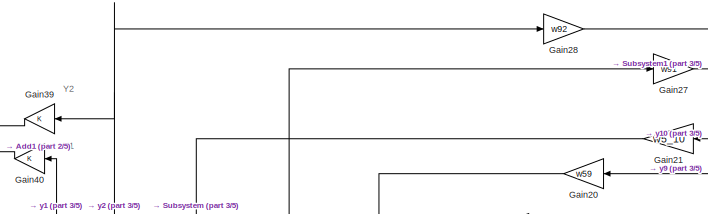
[diagram: root canvas - part 1/5, top center region]
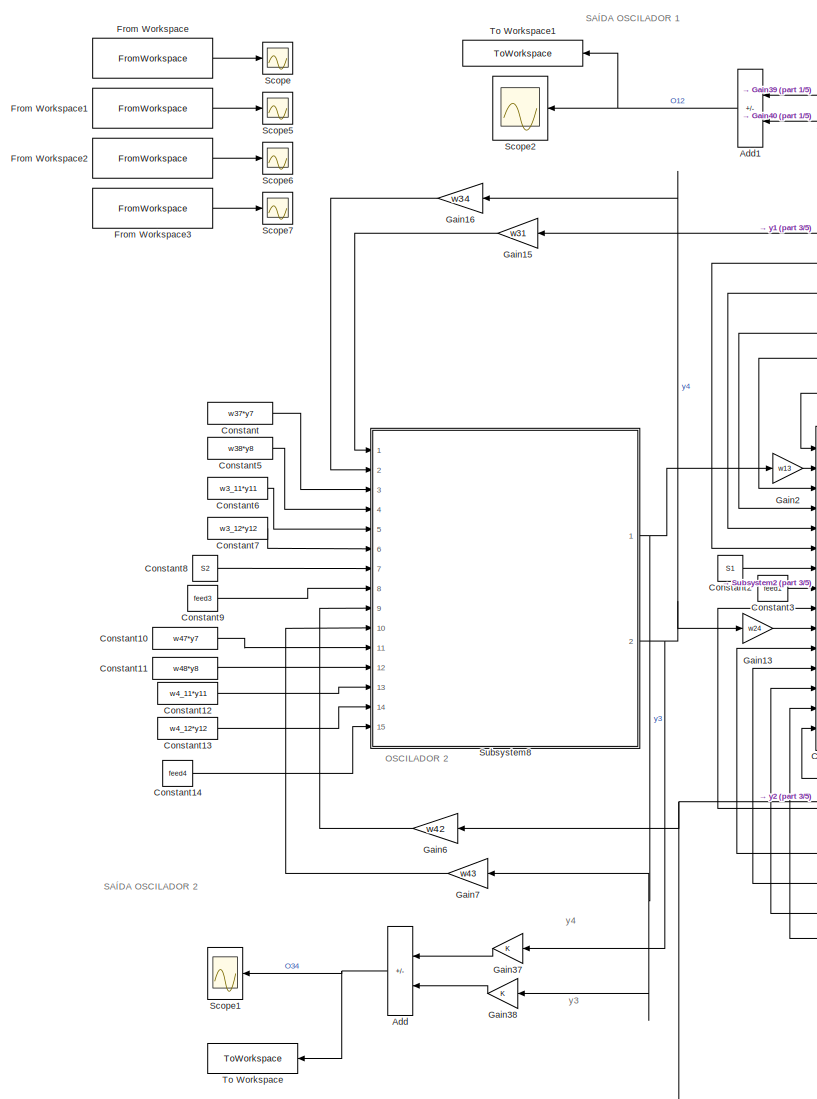
[diagram: root canvas - part 2/5, left side, full height]
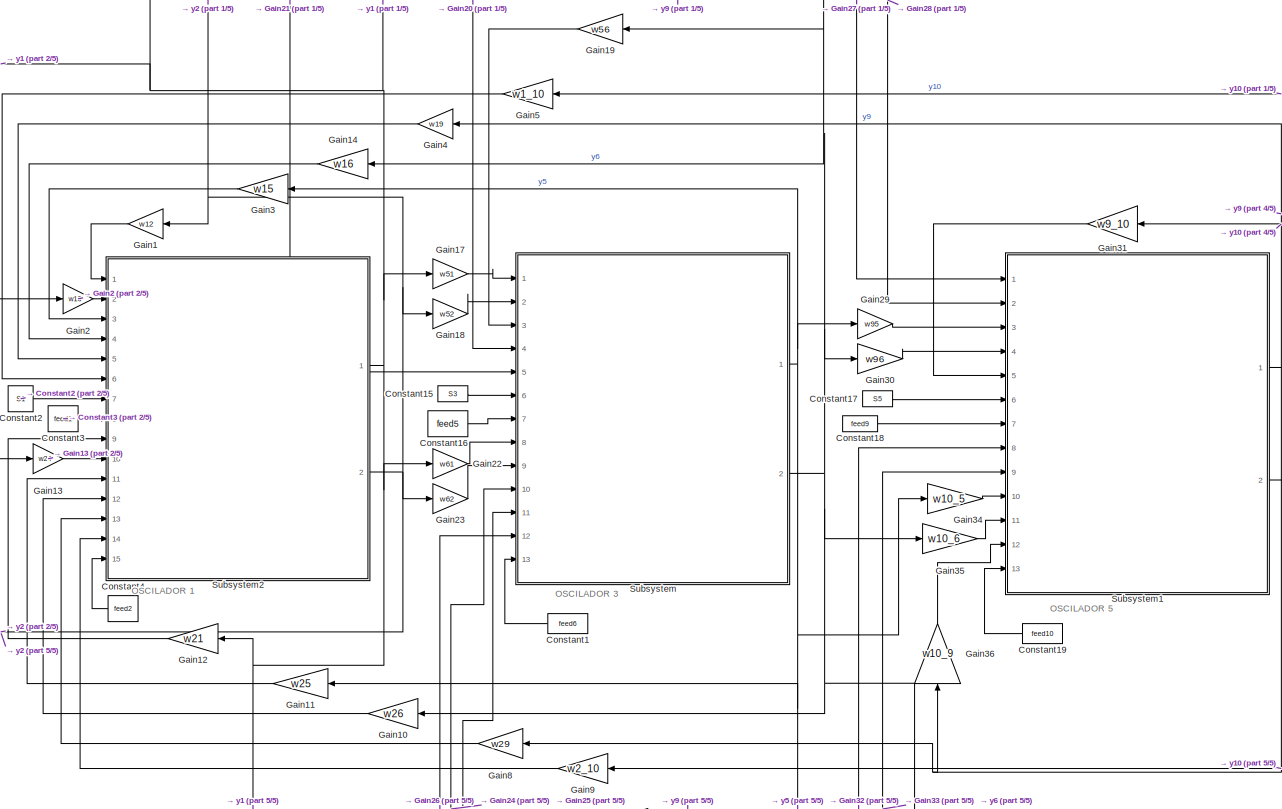
[diagram: root canvas - part 3/5, central region]
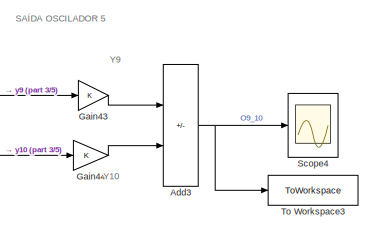
[diagram: root canvas - part 4/5, middle right region]
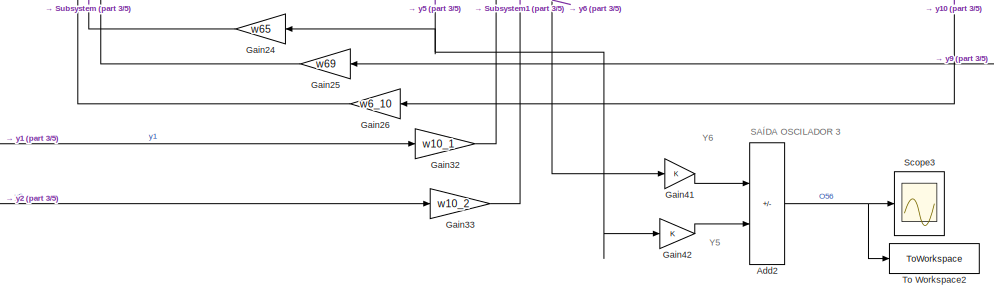
[diagram: root canvas - part 5/5, bottom center region]
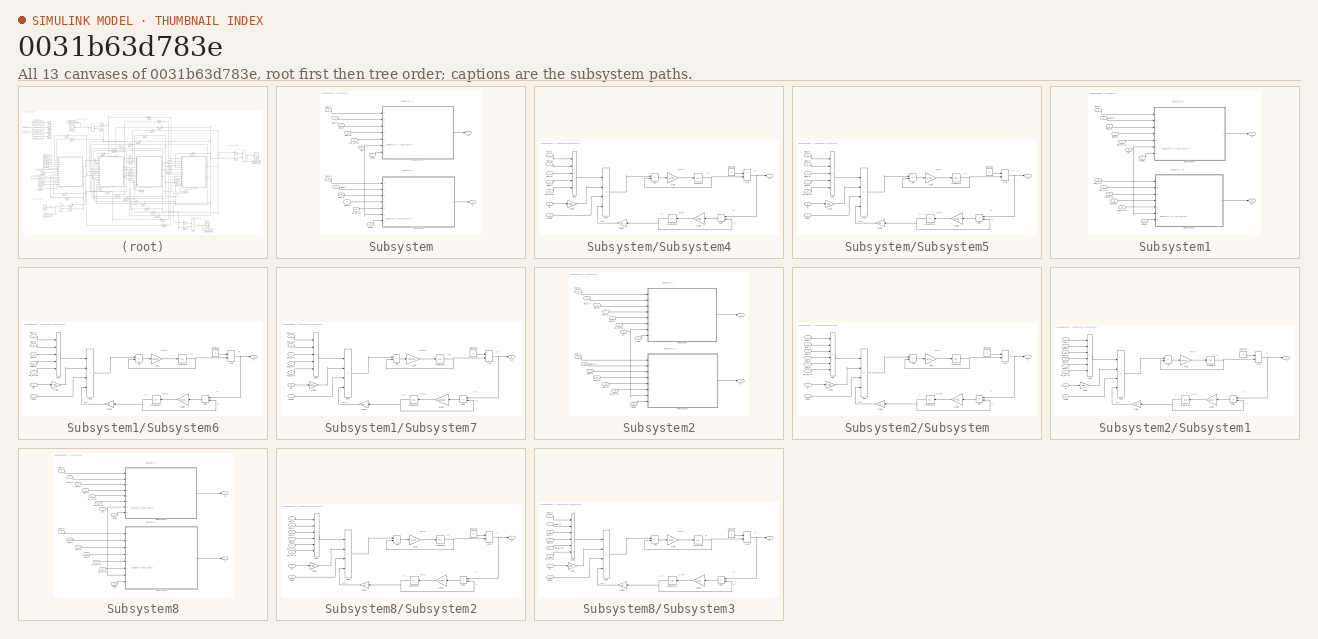
[diagram: thumbnail index - all 13 canvases of the model, root first then tree order]
MODEL slx_0031b63d783e
KIND model
CONFIG AbsTol = auto
CONFIG EnableMultiTasking = off
CONFIG FixedStep = auto
CONFIG MaxStep = auto
CONFIG MinStep = auto
CONFIG RelTol = 1e-4
CONFIG SampleTimeConstraint = Unconstrained
CONFIG Solver = VariableStepAuto
CONFIG SolverName = VariableStepAuto
CONFIG StartTime = 0.0
CONFIG StopTime = 1.14
BLOCK [Sum] Add
  IconShape = rectangular
  Inputs = +-
  NameLocation = top
  Ports = [2, 1]
BLOCK [Sum] Add1
  IconShape = rectangular
  Inputs = +-
  NameLocation = top
  Ports = [2, 1]
BLOCK [Sum] Add2
  IconShape = rectangular
  Inputs = +-
  Ports = [2, 1]
BLOCK [Sum] Add3
  IconShape = rectangular
  Inputs = -+
  Ports = [2, 1]
BLOCK [Constant] Constant
  Value = w37*y7
BLOCK [Constant] Constant1
  NameLocation = top
  Value = feed6
BLOCK [Constant] Constant10
  Value = w47*y7
BLOCK [Constant] Constant11
  Value = w48*y8
BLOCK [Constant] Constant12
  Value = w4_11*y11
BLOCK [Constant] Constant13
  Value = w4_12*y12
BLOCK [Constant] Constant14
  Value = feed4
BLOCK [Constant] Constant15
  Value = S3
BLOCK [Constant] Constant16
  Value = feed5
BLOCK [Constant] Constant17
  Value = S5
BLOCK [Constant] Constant18
  Value = feed9
BLOCK [Constant] Constant19
  NameLocation = top
  Value = feed10
BLOCK [Constant] Constant2
  Value = S1
BLOCK [Constant] Constant3
  Value = feed1
BLOCK [Constant] Constant4
  NameLocation = top
  Value = feed2
BLOCK [Constant] Constant5
  Value = w38*y8
BLOCK [Constant] Constant6
  Value = w3_11*y11
BLOCK [Constant] Constant7
  Value = w3_12*y12
BLOCK [Constant] Constant8
  Value = S2
BLOCK [Constant] Constant9
  Value = feed3
BLOCK [FromWorkspace] From Workspace
  OutputAfterFinalValue = Holding final value
  VariableName = thetaQD
BLOCK [FromWorkspace] From Workspace1
  OutputAfterFinalValue = Holding final value
  VariableName = thetaJD
BLOCK [FromWorkspace] From Workspace2
  OutputAfterFinalValue = Holding final value
  VariableName = thetaTD
BLOCK [FromWorkspace] From Workspace3
  OutputAfterFinalValue = Holding final value
  VariableName = thetaQE
BLOCK [Gain] Gain1
  Gain = w12
  NameLocation = top
BLOCK [Gain] Gain10
  Gain = w26
  NameLocation = top
BLOCK [Gain] Gain11
  Gain = w25
  NameLocation = top
BLOCK [Gain] Gain12
  Gain = w21
  NameLocation = top
BLOCK [Gain] Gain13
  Gain = w24
BLOCK [Gain] Gain14
  Gain = w16
  NameLocation = top
BLOCK [Gain] Gain15
  Gain = w31
  NameLocation = top
BLOCK [Gain] Gain16
  Gain = w34
  NameLocation = top
BLOCK [Gain] Gain17
  Gain = w51
BLOCK [Gain] Gain18
  Gain = w52
BLOCK [Gain] Gain19
  Gain = w56
  NameLocation = top
BLOCK [Gain] Gain2
  Gain = w13
BLOCK [Gain] Gain20
  Gain = w59
  NameLocation = top
BLOCK [Gain] Gain21
  Gain = w5_10
  NameLocation = top
BLOCK [Gain] Gain22
  Gain = w61
BLOCK [Gain] Gain23
  Gain = w62
BLOCK [Gain] Gain24
  Gain = w65
  NameLocation = top
BLOCK [Gain] Gain25
  Gain = w69
  NameLocation = top
BLOCK [Gain] Gain26
  Gain = w6_10
  NameLocation = top
BLOCK [Gain] Gain27
  Gain = w91
BLOCK [Gain] Gain28
  Gain = w92
BLOCK [Gain] Gain29
  Gain = w95
BLOCK [Gain] Gain3
  Gain = w15
  NameLocation = top
BLOCK [Gain] Gain30
  Gain = w96
BLOCK [Gain] Gain31
  Gain = w9_10
  NameLocation = top
BLOCK [Gain] Gain32
  Gain = w10_1
BLOCK [Gain] Gain33
  Gain = w10_2
BLOCK [Gain] Gain34
  Gain = w10_5
BLOCK [Gain] Gain35
  Gain = w10_6
BLOCK [Gain] Gain36
  Gain = w10_9
  NameLocation = right
BLOCK [Gain] Gain37
  NameLocation = top
BLOCK [Gain] Gain38
  NameLocation = top
BLOCK [Gain] Gain39
  NameLocation = top
BLOCK [Gain] Gain4
  Gain = w19
  NameLocation = top
BLOCK [Gain] Gain40
  NameLocation = top
BLOCK [Gain] Gain41
BLOCK [Gain] Gain42
BLOCK [Gain] Gain43
BLOCK [Gain] Gain44
BLOCK [Gain] Gain5
  Gain = w1_10
  NameLocation = top
BLOCK [Gain] Gain6
  Gain = w42
  NameLocation = top
BLOCK [Gain] Gain7
  Gain = w43
  NameLocation = top
BLOCK [Gain] Gain8
  Gain = w29
  NameLocation = top
BLOCK [Gain] Gain9
  Gain = w2_10
  NameLocation = top
BLOCK [Scope] Scope
  Floating = off
  NumInputPorts = 1
  Ports = [1]
  ScopeSpecificationString = Simulink.scopes.TimeScopeBlockCfg('CurrentConfiguration', extmgr.ConfigurationSet(extmgr.Configuration('Core','General UI',true),extmgr.Configuration('Core','Source UI',true),extmgr.Configuration('Sources','WiredSimulink',true,'DataLoggingVariableName','ScopeData1'),extmgr.Configuration('Visuals','Time Domain',true,'SerializedDisplays',{struct('MinYLimReal','-14.72972','MaxYLimReal','33.09974','YL...<+1379ch>
BLOCK [Scope] Scope1
  Floating = off
  NameLocation = top
  NumInputPorts = 1
  Ports = [1]
  ScopeSpecificationString = Simulink.scopes.TimeScopeBlockCfg('CurrentConfiguration', extmgr.ConfigurationSet(extmgr.Configuration('Core','General UI',true),extmgr.Configuration('Core','Source UI',true),extmgr.Configuration('Sources','WiredSimulink',true,'DataLoggingVariableName','ScopeData2'),extmgr.Configuration('Visuals','Time Domain',true,'SerializedDisplays',{struct('MinYLimReal','-165.14927','MaxYLimReal','49.83977','Y...<+1439ch>
BLOCK [Scope] Scope2
  Floating = off
  NameLocation = top
  NumInputPorts = 1
  Ports = [1]
  ScopeSpecificationString = Simulink.scopes.TimeScopeBlockCfg('CurrentConfiguration', extmgr.ConfigurationSet(extmgr.Configuration('Core','General UI',true),extmgr.Configuration('Core','Source UI',true),extmgr.Configuration('Sources','WiredSimulink',true,'DataLoggingVariableName','ScopeData3'),extmgr.Configuration('Visuals','Time Domain',true,'SerializedDisplays',{struct('MinYLimReal','-50.16275','MaxYLimReal','53.42791','YL...<+1450ch>
BLOCK [Scope] Scope3
  Floating = off
  NumInputPorts = 1
  Ports = [1]
  ScopeSpecificationString = Simulink.scopes.TimeScopeBlockCfg('CurrentConfiguration', extmgr.ConfigurationSet(extmgr.Configuration('Core','General UI',true),extmgr.Configuration('Core','Source UI',true),extmgr.Configuration('Sources','WiredSimulink',true,'DataLoggingVariableName','ScopeData4'),extmgr.Configuration('Visuals','Time Domain',true,'SerializedDisplays',{struct('MinYLimReal','-5.19795','MaxYLimReal','46.78152','YLa...<+1450ch>
BLOCK [Scope] Scope4
  Floating = off
  NumInputPorts = 1
  Ports = [1]
  ScopeSpecificationString = Simulink.scopes.TimeScopeBlockCfg('CurrentConfiguration', extmgr.ConfigurationSet(extmgr.Configuration('Core','General UI',true),extmgr.Configuration('Core','Source UI',true),extmgr.Configuration('Sources','WiredSimulink',true,'DataLoggingVariableName','ScopeData5'),extmgr.Configuration('Visuals','Time Domain',true,'SerializedDisplays',{struct('MinYLimReal','-1.74242','MaxYLimReal','15.68176','YLa...<+1452ch>
BLOCK [Scope] Scope5
  Floating = off
  NumInputPorts = 1
  Ports = [1]
  ScopeSpecificationString = Simulink.scopes.TimeScopeBlockCfg('CurrentConfiguration', extmgr.ConfigurationSet(extmgr.Configuration('Core','General UI',true),extmgr.Configuration('Core','Source UI',true),extmgr.Configuration('Sources','WiredSimulink',true,'DataLoggingVariableName','ScopeData6'),extmgr.Configuration('Visuals','Time Domain',true,'SerializedDisplays',{struct('MinYLimReal','6.32765','MaxYLimReal','67.47013','YLab...<+1376ch>
BLOCK [Scope] Scope6
  Floating = off
  NumInputPorts = 1
  Ports = [1]
  ScopeSpecificationString = Simulink.scopes.TimeScopeBlockCfg('CurrentConfiguration', extmgr.ConfigurationSet(extmgr.Configuration('Core','General UI',true),extmgr.Configuration('Core','Source UI',true),extmgr.Configuration('Sources','WiredSimulink',true,'DataLoggingVariableName','ScopeData7'),extmgr.Configuration('Visuals','Time Domain',true,'SerializedDisplays',{struct('MinYLimReal','-8.9193','MaxYLimReal','22.63934','YLab...<+1376ch>
BLOCK [Scope] Scope7
  Floating = off
  NumInputPorts = 1
  Ports = [1]
  ScopeSpecificationString = Simulink.scopes.TimeScopeBlockCfg('CurrentConfiguration', extmgr.ConfigurationSet(extmgr.Configuration('Core','General UI',true),extmgr.Configuration('Core','Source UI',true),extmgr.Configuration('Sources','WiredSimulink',true),extmgr.Configuration('Visuals','Time Domain',true,'SerializedDisplays',{struct('MinYLimReal','-14.77229','MaxYLimReal','33.10426','YLabelReal','','MinYLimMag','0.00000','Ma...<+1341ch>
BLOCK [SubSystem] Subsystem
  Ports = [13, 2]
  RequestExecContextInheritance = off
BLOCK [Inport] Subsystem/S3
  Port = 6
BLOCK [SubSystem] Subsystem/Subsystem4
  Ports = [7, 1]
  RequestExecContextInheritance = off
BLOCK [Sum] Subsystem/Subsystem4/Add
  IconShape = rectangular
  Inputs = +-
  Ports = [2, 1]
BLOCK [Sum] Subsystem/Subsystem4/Add1
  IconShape = rectangular
  Inputs = +++++
  Ports = [5, 1]
BLOCK [Sum] Subsystem/Subsystem4/Add2
  IconShape = rectangular
  Inputs = +++-
  Ports = [4, 1]
BLOCK [Sum] Subsystem/Subsystem4/Add3
  IconShape = rectangular
  Inputs = +-
  NameLocation = top
  Ports = [2, 1]
BLOCK [Constant] Subsystem/Subsystem4/Constant
  Value = 0
BLOCK [Gain] Subsystem/Subsystem4/Gain
  Gain = 1/tr5
BLOCK [Gain] Subsystem/Subsystem4/Gain1
  Gain = ws5
BLOCK [Gain] Subsystem/Subsystem4/Gain2
  Gain = 1/ta5
  NameLocation = top
BLOCK [Gain] Subsystem/Subsystem4/Gain3
  Gain = b3
  NameLocation = top
BLOCK [Integrator] Subsystem/Subsystem4/Integrator
  Ports = [1, 1]
BLOCK [Integrator] Subsystem/Subsystem4/Integrator1
  NameLocation = top
  Ports = [1, 1]
BLOCK [MinMax] Subsystem/Subsystem4/Max
  Function = max
  Inputs = 2
  Ports = [2, 1]
BLOCK [Inport] Subsystem/Subsystem4/S3
  Port = 6
BLOCK [Inport] Subsystem/Subsystem4/feed5
  Port = 7
BLOCK [Inport] Subsystem/Subsystem4/w51*y1
BLOCK [Inport] Subsystem/Subsystem4/w52*y2
  Port = 2
BLOCK [Inport] Subsystem/Subsystem4/w56*y6
  Port = 3
BLOCK [Inport] Subsystem/Subsystem4/w59*y9
  Port = 4
BLOCK [Inport] Subsystem/Subsystem4/w5_10*y10
  Port = 5
BLOCK [Outport] Subsystem/Subsystem4/y5
  VectorParamsAs1DForOutWhenUnconnected = off
BLOCK [SubSystem] Subsystem/Subsystem5
  Ports = [7, 1]
  RequestExecContextInheritance = off
BLOCK [Sum] Subsystem/Subsystem5/Add
  IconShape = rectangular
  Inputs = +-
  Ports = [2, 1]
BLOCK [Sum] Subsystem/Subsystem5/Add1
  IconShape = rectangular
  Inputs = +++++
  Ports = [5, 1]
BLOCK [Sum] Subsystem/Subsystem5/Add2
  IconShape = rectangular
  Inputs = +++-
  Ports = [4, 1]
BLOCK [Sum] Subsystem/Subsystem5/Add3
  IconShape = rectangular
  Inputs = +-
  NameLocation = top
  Ports = [2, 1]
BLOCK [Constant] Subsystem/Subsystem5/Constant
  Value = 0
BLOCK [Gain] Subsystem/Subsystem5/Gain
  Gain = 1/tr6
BLOCK [Gain] Subsystem/Subsystem5/Gain1
  Gain = ws6
BLOCK [Gain] Subsystem/Subsystem5/Gain2
  Gain = 1/ta6
  NameLocation = top
BLOCK [Gain] Subsystem/Subsystem5/Gain3
  Gain = b3
  NameLocation = top
BLOCK [Integrator] Subsystem/Subsystem5/Integrator
  Ports = [1, 1]
BLOCK [Integrator] Subsystem/Subsystem5/Integrator1
  NameLocation = top
  Ports = [1, 1]
BLOCK [MinMax] Subsystem/Subsystem5/Max
  Function = max
  Inputs = 2
  Ports = [2, 1]
BLOCK [Inport] Subsystem/Subsystem5/S3
  Port = 6
BLOCK [Inport] Subsystem/Subsystem5/feed6
  Port = 7
BLOCK [Inport] Subsystem/Subsystem5/w61*y1
BLOCK [Inport] Subsystem/Subsystem5/w62*y2
  Port = 2
BLOCK [Inport] Subsystem/Subsystem5/w65*y5
  Port = 3
BLOCK [Inport] Subsystem/Subsystem5/w69*y9
  Port = 4
BLOCK [Inport] Subsystem/Subsystem5/w6_10*y10
  Port = 5
BLOCK [Outport] Subsystem/Subsystem5/y6
  VectorParamsAs1DForOutWhenUnconnected = off
BLOCK [Inport] Subsystem/feed5
  Port = 7
BLOCK [Inport] Subsystem/feed6
  Port = 13
BLOCK [Inport] Subsystem/w51*y1
BLOCK [Inport] Subsystem/w52*y2
  Port = 2
BLOCK [Inport] Subsystem/w56*y6
  Port = 3
BLOCK [Inport] Subsystem/w59*y9
  Port = 4
BLOCK [Inport] Subsystem/w5_10*y10
  Port = 5
BLOCK [Inport] Subsystem/w61*y1
  Port = 8
BLOCK [Inport] Subsystem/w62*y2
  Port = 9
BLOCK [Inport] Subsystem/w65*y5
  Port = 10
BLOCK [Inport] Subsystem/w69*y9
  Port = 11
BLOCK [Inport] Subsystem/w6_10*y10
  Port = 12
BLOCK [Outport] Subsystem/y5
  VectorParamsAs1DForOutWhenUnconnected = off
BLOCK [Outport] Subsystem/y6
  Port = 2
  VectorParamsAs1DForOutWhenUnconnected = off
BLOCK [SubSystem] Subsystem1
  Ports = [13, 2]
  RequestExecContextInheritance = off
BLOCK [Inport] Subsystem1/S5
  Port = 6
BLOCK [SubSystem] Subsystem1/Subsystem6
  Ports = [7, 1]
  RequestExecContextInheritance = off
BLOCK [Sum] Subsystem1/Subsystem6/Add
  IconShape = rectangular
  Inputs = +-
  Ports = [2, 1]
BLOCK [Sum] Subsystem1/Subsystem6/Add1
  IconShape = rectangular
  Inputs = +++++
  Ports = [5, 1]
BLOCK [Sum] Subsystem1/Subsystem6/Add2
  IconShape = rectangular
  Inputs = +++-
  Ports = [4, 1]
BLOCK [Sum] Subsystem1/Subsystem6/Add3
  IconShape = rectangular
  Inputs = +-
  NameLocation = top
  Ports = [2, 1]
BLOCK [Constant] Subsystem1/Subsystem6/Constant
  Value = 0
BLOCK [Gain] Subsystem1/Subsystem6/Gain
  Gain = 1/tr9
BLOCK [Gain] Subsystem1/Subsystem6/Gain1
  Gain = ws9
BLOCK [Gain] Subsystem1/Subsystem6/Gain2
  Gain = 1/ta9
  NameLocation = top
BLOCK [Gain] Subsystem1/Subsystem6/Gain3
  Gain = b5
  NameLocation = top
BLOCK [Integrator] Subsystem1/Subsystem6/Integrator
  Ports = [1, 1]
BLOCK [Integrator] Subsystem1/Subsystem6/Integrator1
  NameLocation = top
  Ports = [1, 1]
BLOCK [MinMax] Subsystem1/Subsystem6/Max
  Function = max
  Inputs = 2
  Ports = [2, 1]
BLOCK [Inport] Subsystem1/Subsystem6/S5
  Port = 6
BLOCK [Inport] Subsystem1/Subsystem6/feed9
  Port = 7
BLOCK [Inport] Subsystem1/Subsystem6/w91*y1
BLOCK [Inport] Subsystem1/Subsystem6/w92*y2
  Port = 2
BLOCK [Inport] Subsystem1/Subsystem6/w95*y5
  Port = 3
BLOCK [Inport] Subsystem1/Subsystem6/w96*y6
  Port = 4
BLOCK [Inport] Subsystem1/Subsystem6/w9_10*y10
  Port = 5
BLOCK [Outport] Subsystem1/Subsystem6/y9
  VectorParamsAs1DForOutWhenUnconnected = off
BLOCK [SubSystem] Subsystem1/Subsystem7
  Ports = [7, 1]
  RequestExecContextInheritance = off
BLOCK [Sum] Subsystem1/Subsystem7/Add
  IconShape = rectangular
  Inputs = +-
  Ports = [2, 1]
BLOCK [Sum] Subsystem1/Subsystem7/Add1
  IconShape = rectangular
  Inputs = +++++
  Ports = [5, 1]
BLOCK [Sum] Subsystem1/Subsystem7/Add2
  IconShape = rectangular
  Inputs = +++-
  Ports = [4, 1]
BLOCK [Sum] Subsystem1/Subsystem7/Add3
  IconShape = rectangular
  Inputs = +-
  NameLocation = top
  Ports = [2, 1]
BLOCK [Constant] Subsystem1/Subsystem7/Constant
  Value = 0
BLOCK [Gain] Subsystem1/Subsystem7/Gain
  Gain = 1/tr10
BLOCK [Gain] Subsystem1/Subsystem7/Gain1
  Gain = ws10
BLOCK [Gain] Subsystem1/Subsystem7/Gain2
  Gain = 1/ta10
  NameLocation = top
BLOCK [Gain] Subsystem1/Subsystem7/Gain3
  Gain = b5
  NameLocation = top
BLOCK [Integrator] Subsystem1/Subsystem7/Integrator
  Ports = [1, 1]
BLOCK [Integrator] Subsystem1/Subsystem7/Integrator1
  NameLocation = top
  Ports = [1, 1]
BLOCK [MinMax] Subsystem1/Subsystem7/Max
  Function = max
  Inputs = 2
  Ports = [2, 1]
BLOCK [Inport] Subsystem1/Subsystem7/S5
  Port = 6
BLOCK [Inport] Subsystem1/Subsystem7/feed10
  Port = 7
BLOCK [Inport] Subsystem1/Subsystem7/w10_1*y1
BLOCK [Inport] Subsystem1/Subsystem7/w10_2*y2
  Port = 2
BLOCK [Inport] Subsystem1/Subsystem7/w10_5*y5
  Port = 3
BLOCK [Inport] Subsystem1/Subsystem7/w10_6*y6
  Port = 4
BLOCK [Inport] Subsystem1/Subsystem7/w10_9*y9
  Port = 5
BLOCK [Outport] Subsystem1/Subsystem7/y10
  VectorParamsAs1DForOutWhenUnconnected = off
BLOCK [Inport] Subsystem1/feed10
  Port = 13
BLOCK [Inport] Subsystem1/feed9
  Port = 7
BLOCK [Inport] Subsystem1/w10_1*y1
  Port = 8
BLOCK [Inport] Subsystem1/w10_2*y2
  Port = 9
BLOCK [Inport] Subsystem1/w10_5*y5
  Port = 10
BLOCK [Inport] Subsystem1/w10_6*y6
  Port = 11
BLOCK [Inport] Subsystem1/w10_9*y9
  Port = 12
BLOCK [Inport] Subsystem1/w91*y1
BLOCK [Inport] Subsystem1/w92*y2
  Port = 2
BLOCK [Inport] Subsystem1/w95*y5
  Port = 3
BLOCK [Inport] Subsystem1/w96*y6
  Port = 4
BLOCK [Inport] Subsystem1/w9_10*y10
  Port = 5
BLOCK [Outport] Subsystem1/y10
  Port = 2
  VectorParamsAs1DForOutWhenUnconnected = off
BLOCK [Outport] Subsystem1/y9
  VectorParamsAs1DForOutWhenUnconnected = off
BLOCK [SubSystem] Subsystem2
  Ports = [15, 2]
  RequestExecContextInheritance = off
BLOCK [Inport] Subsystem2/S1
  Port = 7
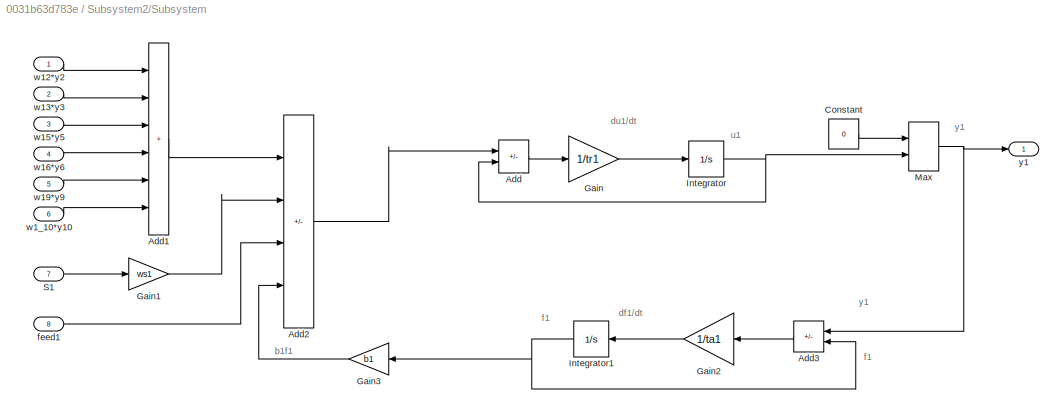
BLOCK [SubSystem] Subsystem2/Subsystem
  Ports = [8, 1]
  RequestExecContextInheritance = off
BLOCK [Sum] Subsystem2/Subsystem/Add
  IconShape = rectangular
  Inputs = +-
  Ports = [2, 1]
BLOCK [Sum] Subsystem2/Subsystem/Add1
  IconShape = rectangular
  Inputs = ++++++
  Ports = [6, 1]
BLOCK [Sum] Subsystem2/Subsystem/Add2
  IconShape = rectangular
  Inputs = +++-
  Ports = [4, 1]
BLOCK [Sum] Subsystem2/Subsystem/Add3
  IconShape = rectangular
  Inputs = +-
  NameLocation = top
  Ports = [2, 1]
BLOCK [Constant] Subsystem2/Subsystem/Constant
  Value = 0
BLOCK [Gain] Subsystem2/Subsystem/Gain
  Gain = 1/tr1
BLOCK [Gain] Subsystem2/Subsystem/Gain1
  Gain = ws1
BLOCK [Gain] Subsystem2/Subsystem/Gain2
  Gain = 1/ta1
  NameLocation = top
BLOCK [Gain] Subsystem2/Subsystem/Gain3
  Gain = b1
  NameLocation = top
BLOCK [Integrator] Subsystem2/Subsystem/Integrator
  Ports = [1, 1]
BLOCK [Integrator] Subsystem2/Subsystem/Integrator1
  NameLocation = top
  Ports = [1, 1]
BLOCK [MinMax] Subsystem2/Subsystem/Max
  Function = max
  Inputs = 2
  Ports = [2, 1]
BLOCK [Inport] Subsystem2/Subsystem/S1
  Port = 7
BLOCK [Inport] Subsystem2/Subsystem/feed1
  Port = 8
BLOCK [Inport] Subsystem2/Subsystem/w12*y2
BLOCK [Inport] Subsystem2/Subsystem/w13*y3
  Port = 2
BLOCK [Inport] Subsystem2/Subsystem/w15*y5
  Port = 3
BLOCK [Inport] Subsystem2/Subsystem/w16*y6
  Port = 4
BLOCK [Inport] Subsystem2/Subsystem/w19*y9
  Port = 5
BLOCK [Inport] Subsystem2/Subsystem/w1_10*y10 
  Port = 6
BLOCK [Outport] Subsystem2/Subsystem/y1
  VectorParamsAs1DForOutWhenUnconnected = off
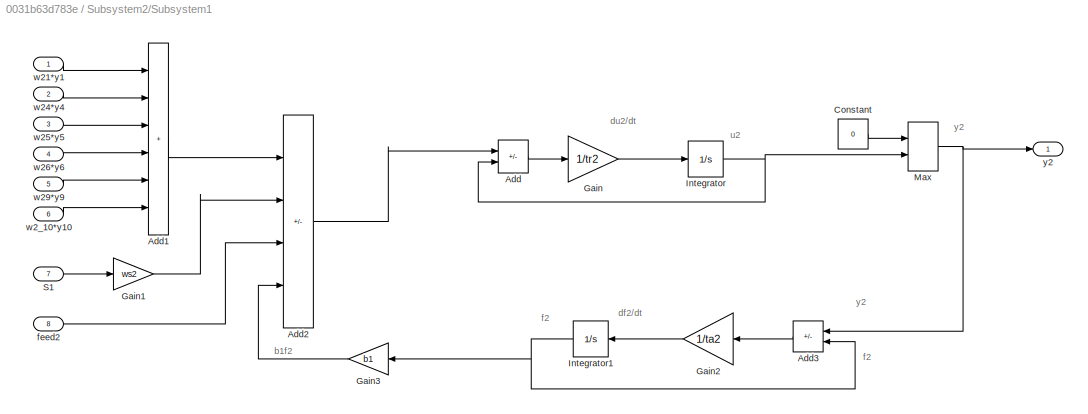
BLOCK [SubSystem] Subsystem2/Subsystem1
  Ports = [8, 1]
  RequestExecContextInheritance = off
BLOCK [Sum] Subsystem2/Subsystem1/Add
  IconShape = rectangular
  Inputs = +-
  Ports = [2, 1]
BLOCK [Sum] Subsystem2/Subsystem1/Add1
  IconShape = rectangular
  Inputs = ++++++
  Ports = [6, 1]
BLOCK [Sum] Subsystem2/Subsystem1/Add2
  IconShape = rectangular
  Inputs = +++-
  Ports = [4, 1]
BLOCK [Sum] Subsystem2/Subsystem1/Add3
  IconShape = rectangular
  Inputs = +-
  NameLocation = top
  Ports = [2, 1]
BLOCK [Constant] Subsystem2/Subsystem1/Constant
  Value = 0
BLOCK [Gain] Subsystem2/Subsystem1/Gain
  Gain = 1/tr2
BLOCK [Gain] Subsystem2/Subsystem1/Gain1
  Gain = ws2
BLOCK [Gain] Subsystem2/Subsystem1/Gain2
  Gain = 1/ta2
  NameLocation = top
BLOCK [Gain] Subsystem2/Subsystem1/Gain3
  Gain = b1
  NameLocation = top
BLOCK [Integrator] Subsystem2/Subsystem1/Integrator
  Ports = [1, 1]
BLOCK [Integrator] Subsystem2/Subsystem1/Integrator1
  NameLocation = top
  Ports = [1, 1]
BLOCK [MinMax] Subsystem2/Subsystem1/Max
  Function = max
  Inputs = 2
  Ports = [2, 1]
BLOCK [Inport] Subsystem2/Subsystem1/S1
  Port = 7
BLOCK [Inport] Subsystem2/Subsystem1/feed2
  Port = 8
BLOCK [Inport] Subsystem2/Subsystem1/w21*y1
BLOCK [Inport] Subsystem2/Subsystem1/w24*y4
  Port = 2
BLOCK [Inport] Subsystem2/Subsystem1/w25*y5
  Port = 3
BLOCK [Inport] Subsystem2/Subsystem1/w26*y6
  Port = 4
BLOCK [Inport] Subsystem2/Subsystem1/w29*y9
  Port = 5
BLOCK [Inport] Subsystem2/Subsystem1/w2_10*y10 
  Port = 6
BLOCK [Outport] Subsystem2/Subsystem1/y2
  VectorParamsAs1DForOutWhenUnconnected = off
BLOCK [Inport] Subsystem2/feed1
  Port = 8
BLOCK [Inport] Subsystem2/feed2
  Port = 15
BLOCK [Inport] Subsystem2/w12*y2
BLOCK [Inport] Subsystem2/w13*y3
  Port = 2
BLOCK [Inport] Subsystem2/w15*y5
  Port = 3
BLOCK [Inport] Subsystem2/w16*y6
  Port = 4
BLOCK [Inport] Subsystem2/w19*y9
  Port = 5
BLOCK [Inport] Subsystem2/w1_10*y10
  Port = 6
BLOCK [Inport] Subsystem2/w21*y1
  Port = 9
BLOCK [Inport] Subsystem2/w24*y4
  Port = 10
BLOCK [Inport] Subsystem2/w25*y5
  Port = 11
BLOCK [Inport] Subsystem2/w26*y6
  Port = 12
BLOCK [Inport] Subsystem2/w29*y9
  Port = 13
BLOCK [Inport] Subsystem2/w2_10*y10
  Port = 14
BLOCK [Outport] Subsystem2/y1
  VectorParamsAs1DForOutWhenUnconnected = off
BLOCK [Outport] Subsystem2/y2
  Port = 2
  VectorParamsAs1DForOutWhenUnconnected = off
BLOCK [SubSystem] Subsystem8
  Ports = [15, 2]
  RequestExecContextInheritance = off
BLOCK [Inport] Subsystem8/S2
  Port = 7
BLOCK [SubSystem] Subsystem8/Subsystem2
  Ports = [8, 1]
  RequestExecContextInheritance = off
BLOCK [Sum] Subsystem8/Subsystem2/Add
  IconShape = rectangular
  Inputs = +-
  Ports = [2, 1]
BLOCK [Sum] Subsystem8/Subsystem2/Add1
  IconShape = rectangular
  Inputs = ++++++
  Ports = [6, 1]
BLOCK [Sum] Subsystem8/Subsystem2/Add2
  IconShape = rectangular
  Inputs = +++-
  Ports = [4, 1]
BLOCK [Sum] Subsystem8/Subsystem2/Add3
  IconShape = rectangular
  Inputs = +-
  NameLocation = top
  Ports = [2, 1]
BLOCK [Constant] Subsystem8/Subsystem2/Constant
  Value = 0
BLOCK [Gain] Subsystem8/Subsystem2/Gain
  Gain = 1/tr3
BLOCK [Gain] Subsystem8/Subsystem2/Gain1
  Gain = ws3
BLOCK [Gain] Subsystem8/Subsystem2/Gain2
  Gain = 1/ta3
  NameLocation = top
BLOCK [Gain] Subsystem8/Subsystem2/Gain3
  Gain = b2
  NameLocation = top
BLOCK [Integrator] Subsystem8/Subsystem2/Integrator
  Ports = [1, 1]
BLOCK [Integrator] Subsystem8/Subsystem2/Integrator1
  NameLocation = top
  Ports = [1, 1]
BLOCK [MinMax] Subsystem8/Subsystem2/Max
  Function = max
  Inputs = 2
  Ports = [2, 1]
BLOCK [Inport] Subsystem8/Subsystem2/S2
  Port = 7
BLOCK [Inport] Subsystem8/Subsystem2/feed3
  Port = 8
BLOCK [Inport] Subsystem8/Subsystem2/w31*y1
BLOCK [Inport] Subsystem8/Subsystem2/w34*y4
  Port = 2
BLOCK [Inport] Subsystem8/Subsystem2/w37*y7
  Port = 3
BLOCK [Inport] Subsystem8/Subsystem2/w38*y8
  Port = 4
BLOCK [Inport] Subsystem8/Subsystem2/w3_11*y11
  Port = 5
BLOCK [Inport] Subsystem8/Subsystem2/w3_12*y12 
  Port = 6
BLOCK [Outport] Subsystem8/Subsystem2/y3
  VectorParamsAs1DForOutWhenUnconnected = off
BLOCK [SubSystem] Subsystem8/Subsystem3
  Ports = [8, 1]
  RequestExecContextInheritance = off
BLOCK [Sum] Subsystem8/Subsystem3/Add
  IconShape = rectangular
  Inputs = +-
  Ports = [2, 1]
BLOCK [Sum] Subsystem8/Subsystem3/Add1
  IconShape = rectangular
  Inputs = ++++++
  Ports = [6, 1]
BLOCK [Sum] Subsystem8/Subsystem3/Add2
  IconShape = rectangular
  Inputs = +++-
  Ports = [4, 1]
BLOCK [Sum] Subsystem8/Subsystem3/Add3
  IconShape = rectangular
  Inputs = +-
  NameLocation = top
  Ports = [2, 1]
BLOCK [Constant] Subsystem8/Subsystem3/Constant
  Value = 0
BLOCK [Gain] Subsystem8/Subsystem3/Gain
  Gain = 1/tr4
BLOCK [Gain] Subsystem8/Subsystem3/Gain1
  Gain = ws4
BLOCK [Gain] Subsystem8/Subsystem3/Gain2
  Gain = 1/ta4
  NameLocation = top
BLOCK [Gain] Subsystem8/Subsystem3/Gain3
  Gain = b2
  NameLocation = top
BLOCK [Integrator] Subsystem8/Subsystem3/Integrator
  Ports = [1, 1]
BLOCK [Integrator] Subsystem8/Subsystem3/Integrator1
  NameLocation = top
  Ports = [1, 1]
BLOCK [MinMax] Subsystem8/Subsystem3/Max
  Function = max
  Inputs = 2
  Ports = [2, 1]
BLOCK [Inport] Subsystem8/Subsystem3/S2
  Port = 7
BLOCK [Inport] Subsystem8/Subsystem3/feed4
  Port = 8
BLOCK [Inport] Subsystem8/Subsystem3/w42*y2
BLOCK [Inport] Subsystem8/Subsystem3/w43*y3
  Port = 2
BLOCK [Inport] Subsystem8/Subsystem3/w47*y7
  Port = 3
BLOCK [Inport] Subsystem8/Subsystem3/w48*y8
  Port = 4
BLOCK [Inport] Subsystem8/Subsystem3/w4_11*y11
  Port = 5
BLOCK [Inport] Subsystem8/Subsystem3/w4_12*y12 
  Port = 6
BLOCK [Outport] Subsystem8/Subsystem3/y4
  VectorParamsAs1DForOutWhenUnconnected = off
BLOCK [Inport] Subsystem8/feed3
  Port = 8
BLOCK [Inport] Subsystem8/feed4
  Port = 15
BLOCK [Inport] Subsystem8/w31*y1
BLOCK [Inport] Subsystem8/w34*y4
  Port = 2
BLOCK [Inport] Subsystem8/w37*y7
  Port = 3
BLOCK [Inport] Subsystem8/w38*y8
  Port = 4
BLOCK [Inport] Subsystem8/w3_11*y11
  Port = 5
BLOCK [Inport] Subsystem8/w3_12*y12
  Port = 6
BLOCK [Inport] Subsystem8/w42*y2
  Port = 9
BLOCK [Inport] Subsystem8/w43*y3
  Port = 10
BLOCK [Inport] Subsystem8/w47*y7
  Port = 11
BLOCK [Inport] Subsystem8/w48*y8
  Port = 12
BLOCK [Inport] Subsystem8/w4_11*y11
  Port = 13
BLOCK [Inport] Subsystem8/w4_12*y12
  Port = 14
BLOCK [Outport] Subsystem8/y3
  VectorParamsAs1DForOutWhenUnconnected = off
BLOCK [Outport] Subsystem8/y4
  Port = 2
  VectorParamsAs1DForOutWhenUnconnected = off
BLOCK [ToWorkspace] To Workspace
  FixptAsFi = on
  MaxDataPoints = inf
  NameLocation = top
  Ports = [1]
  SampleTime = -1
  SaveFormat = Timeseries
  VariableName = oscQE
BLOCK [ToWorkspace] To Workspace1
  FixptAsFi = on
  MaxDataPoints = inf
  NameLocation = top
  Ports = [1]
  SampleTime = -1
  SaveFormat = Timeseries
  VariableName = oscQD
BLOCK [ToWorkspace] To Workspace2
  FixptAsFi = on
  MaxDataPoints = inf
  Ports = [1]
  SampleTime = -1
  SaveFormat = Timeseries
  VariableName = oscJD
BLOCK [ToWorkspace] To Workspace3
  FixptAsFi = on
  MaxDataPoints = inf
  Ports = [1]
  SampleTime = -1
  SaveFormat = Timeseries
  VariableName = oscTD
ANNOTATION (root): OSCILADOR 1
ANNOTATION (root): OSCILADOR 3
ANNOTATION (root): OSCILADOR 5
ANNOTATION (root): OSCILADOR 2
ANNOTATION (root): SAÍDA OSCILADOR 1
ANNOTATION (root): SAÍDA OSCILADOR 2
ANNOTATION (root): SAÍDA OSCILADOR 3
ANNOTATION (root): SAÍDA OSCILADOR 5
ANNOTATION (root): Y10
ANNOTATION (root): Y1
ANNOTATION (root): Y2
ANNOTATION (root): Y5
ANNOTATION (root): Y6
ANNOTATION (root): Y9
ANNOTATION (root): y3
ANNOTATION (root): y4
ANNOTATION Subsystem: NEURONIO 5
ANNOTATION Subsystem: NEURONIO 6
ANNOTATION Subsystem: NEURONIO 5 OSCILADOR 3
ANNOTATION Subsystem: NEURONIO 6 OSCILADOR 3
ANNOTATION Subsystem/Subsystem4: b3f5
ANNOTATION Subsystem/Subsystem4: df5/dt
ANNOTATION Subsystem/Subsystem4: du5/dt
ANNOTATION Subsystem/Subsystem4: f5
ANNOTATION Subsystem/Subsystem4: u5
ANNOTATION Subsystem/Subsystem4: y5
ANNOTATION Subsystem/Subsystem5: b3f6
ANNOTATION Subsystem/Subsystem5: df6/dt
ANNOTATION Subsystem/Subsystem5: du6/dt
ANNOTATION Subsystem/Subsystem5: f6
ANNOTATION Subsystem/Subsystem5: u6
ANNOTATION Subsystem/Subsystem5: y6
ANNOTATION Subsystem1: NEURONIO 10
ANNOTATION Subsystem1: NEURONIO 9
ANNOTATION Subsystem1: NEURONIO 10 OSCILADOR 5
ANNOTATION Subsystem1: NEURONIO 9 OSCILADOR 5
ANNOTATION Subsystem1/Subsystem6: b5f9
ANNOTATION Subsystem1/Subsystem6: df9/dt
ANNOTATION Subsystem1/Subsystem6: du9/dt
ANNOTATION Subsystem1/Subsystem6: f9
ANNOTATION Subsystem1/Subsystem6: u9
ANNOTATION Subsystem1/Subsystem6: y9
ANNOTATION Subsystem1/Subsystem7: b5f10
ANNOTATION Subsystem1/Subsystem7: df10/dt
ANNOTATION Subsystem1/Subsystem7: du10/dt
ANNOTATION Subsystem1/Subsystem7: f10
ANNOTATION Subsystem1/Subsystem7: u10
ANNOTATION Subsystem1/Subsystem7: y10
ANNOTATION Subsystem2: NEURONIO 1
ANNOTATION Subsystem2: NEURONIO 2
ANNOTATION Subsystem2/Subsystem: b1f1
ANNOTATION Subsystem2/Subsystem: df1/dt
ANNOTATION Subsystem2/Subsystem: du1/dt
ANNOTATION Subsystem2/Subsystem: f1
ANNOTATION Subsystem2/Subsystem: u1
ANNOTATION Subsystem2/Subsystem: y1
ANNOTATION Subsystem2/Subsystem1: b1f2
ANNOTATION Subsystem2/Subsystem1: df2/dt
ANNOTATION Subsystem2/Subsystem1: du2/dt
ANNOTATION Subsystem2/Subsystem1: f2
ANNOTATION Subsystem2/Subsystem1: u2
ANNOTATION Subsystem2/Subsystem1: y2
ANNOTATION Subsystem8: NEURONIO 3
ANNOTATION Subsystem8: NEURONIO 4
ANNOTATION Subsystem8: NEURONIO 3 OSCILADOR 2
ANNOTATION Subsystem8: NEURONIO 4 OSCILADOR 2
ANNOTATION Subsystem8/Subsystem2: b2f3
ANNOTATION Subsystem8/Subsystem2: df3/dt
ANNOTATION Subsystem8/Subsystem2: du3/dt
ANNOTATION Subsystem8/Subsystem2: f3
ANNOTATION Subsystem8/Subsystem2: u3
ANNOTATION Subsystem8/Subsystem2: y3
ANNOTATION Subsystem8/Subsystem3: b2f4
ANNOTATION Subsystem8/Subsystem3: df4/dt
ANNOTATION Subsystem8/Subsystem3: du4/dt
ANNOTATION Subsystem8/Subsystem3: f4
ANNOTATION Subsystem8/Subsystem3: u4
ANNOTATION Subsystem8/Subsystem3: y4
NET Add1:1 -> Scope2:1, To Workspace1:1
NET Add2:1 -> Scope3:1, To Workspace2:1
NET Add3:1 -> Scope4:1, To Workspace3:1
NET Add:1 -> Scope1:1, To Workspace:1
LINE Constant10:1 -> Subsystem8:11
LINE Constant11:1 -> Subsystem8:12
LINE Constant12:1 -> Subsystem8:13
LINE Constant13:1 -> Subsystem8:14
LINE Constant14:1 -> Subsystem8:15
LINE Constant15:1 -> Subsystem:6
LINE Constant16:1 -> Subsystem:7
LINE Constant17:1 -> Subsystem1:6
LINE Constant18:1 -> Subsystem1:7
LINE Constant19:1 -> Subsystem1:13
LINE Constant1:1 -> Subsystem:13
LINE Constant2:1 -> Subsystem2:7
LINE Constant3:1 -> Subsystem2:8
LINE Constant4:1 -> Subsystem2:15
LINE Constant5:1 -> Subsystem8:4
LINE Constant6:1 -> Subsystem8:5
LINE Constant7:1 -> Subsystem8:6
LINE Constant8:1 -> Subsystem8:7
LINE Constant9:1 -> Subsystem8:8
LINE Constant:1 -> Subsystem8:3
LINE From Workspace1:1 -> Scope5:1
LINE From Workspace2:1 -> Scope6:1
LINE From Workspace3:1 -> Scope7:1
LINE From Workspace:1 -> Scope:1
LINE Gain10:1 -> Subsystem2:12
LINE Gain11:1 -> Subsystem2:11
LINE Gain12:1 -> Subsystem2:9
LINE Gain13:1 -> Subsystem2:10
LINE Gain14:1 -> Subsystem2:4
LINE Gain15:1 -> Subsystem8:1
LINE Gain16:1 -> Subsystem8:2
LINE Gain17:1 -> Subsystem:1
LINE Gain18:1 -> Subsystem:2
LINE Gain19:1 -> Subsystem:3
LINE Gain1:1 -> Subsystem2:1
LINE Gain20:1 -> Subsystem:4
LINE Gain21:1 -> Subsystem:5
LINE Gain22:1 -> Subsystem:8
LINE Gain23:1 -> Subsystem:9
LINE Gain24:1 -> Subsystem:10
LINE Gain25:1 -> Subsystem:11
LINE Gain26:1 -> Subsystem:12
LINE Gain27:1 -> Subsystem1:1
LINE Gain28:1 -> Subsystem1:2
LINE Gain29:1 -> Subsystem1:3
LINE Gain2:1 -> Subsystem2:2
LINE Gain30:1 -> Subsystem1:4
LINE Gain31:1 -> Subsystem1:5
LINE Gain32:1 -> Subsystem1:8
LINE Gain33:1 -> Subsystem1:9
LINE Gain34:1 -> Subsystem1:10
LINE Gain35:1 -> Subsystem1:11
LINE Gain36:1 -> Subsystem1:12
LINE Gain37:1 -> Add:1
LINE Gain38:1 -> Add:2
LINE Gain39:1 -> Add1:1
LINE Gain3:1 -> Subsystem2:3
LINE Gain40:1 -> Add1:2
LINE Gain41:1 -> Add2:1
LINE Gain42:1 -> Add2:2
LINE Gain43:1 -> Add3:1
LINE Gain44:1 -> Add3:2
LINE Gain4:1 -> Subsystem2:5
LINE Gain5:1 -> Subsystem2:6
LINE Gain6:1 -> Subsystem8:9
LINE Gain7:1 -> Subsystem8:10
LINE Gain8:1 -> Subsystem2:13
LINE Gain9:1 -> Subsystem2:14
NET Subsystem/S3:1 -> Subsystem/Subsystem4:6, Subsystem/Subsystem5:6
LINE Subsystem/Subsystem4/Add1:1 -> Subsystem/Subsystem4/Add2:1
LINE Subsystem/Subsystem4/Add2:1 -> Subsystem/Subsystem4/Add:1
LINE Subsystem/Subsystem4/Add3:1 -> Subsystem/Subsystem4/Gain2:1
LINE Subsystem/Subsystem4/Add:1 -> Subsystem/Subsystem4/Gain:1
LINE Subsystem/Subsystem4/Constant:1 -> Subsystem/Subsystem4/Max:1
LINE Subsystem/Subsystem4/Gain1:1 -> Subsystem/Subsystem4/Add2:2
LINE Subsystem/Subsystem4/Gain2:1 -> Subsystem/Subsystem4/Integrator1:1
LINE Subsystem/Subsystem4/Gain3:1 -> Subsystem/Subsystem4/Add2:4
LINE Subsystem/Subsystem4/Gain:1 -> Subsystem/Subsystem4/Integrator:1
NET Subsystem/Subsystem4/Integrator1:1 -> Subsystem/Subsystem4/Add3:2, Subsystem/Subsystem4/Gain3:1
NET Subsystem/Subsystem4/Integrator:1 -> Subsystem/Subsystem4/Add:2, Subsystem/Subsystem4/Max:2
NET Subsystem/Subsystem4/Max:1 -> Subsystem/Subsystem4/Add3:1, Subsystem/Subsystem4/y5:1
LINE Subsystem/Subsystem4/S3:1 -> Subsystem/Subsystem4/Gain1:1
LINE Subsystem/Subsystem4/feed5:1 -> Subsystem/Subsystem4/Add2:3
LINE Subsystem/Subsystem4/w51*y1:1 -> Subsystem/Subsystem4/Add1:1
LINE Subsystem/Subsystem4/w52*y2:1 -> Subsystem/Subsystem4/Add1:2
LINE Subsystem/Subsystem4/w56*y6:1 -> Subsystem/Subsystem4/Add1:3
LINE Subsystem/Subsystem4/w59*y9:1 -> Subsystem/Subsystem4/Add1:4
LINE Subsystem/Subsystem4/w5_10*y10:1 -> Subsystem/Subsystem4/Add1:5
LINE Subsystem/Subsystem4:1 -> Subsystem/y5:1
LINE Subsystem/Subsystem5/Add1:1 -> Subsystem/Subsystem5/Add2:1
LINE Subsystem/Subsystem5/Add2:1 -> Subsystem/Subsystem5/Add:1
LINE Subsystem/Subsystem5/Add3:1 -> Subsystem/Subsystem5/Gain2:1
LINE Subsystem/Subsystem5/Add:1 -> Subsystem/Subsystem5/Gain:1
LINE Subsystem/Subsystem5/Constant:1 -> Subsystem/Subsystem5/Max:1
LINE Subsystem/Subsystem5/Gain1:1 -> Subsystem/Subsystem5/Add2:2
LINE Subsystem/Subsystem5/Gain2:1 -> Subsystem/Subsystem5/Integrator1:1
LINE Subsystem/Subsystem5/Gain3:1 -> Subsystem/Subsystem5/Add2:4
LINE Subsystem/Subsystem5/Gain:1 -> Subsystem/Subsystem5/Integrator:1
NET Subsystem/Subsystem5/Integrator1:1 -> Subsystem/Subsystem5/Add3:2, Subsystem/Subsystem5/Gain3:1
NET Subsystem/Subsystem5/Integrator:1 -> Subsystem/Subsystem5/Add:2, Subsystem/Subsystem5/Max:2
NET Subsystem/Subsystem5/Max:1 -> Subsystem/Subsystem5/Add3:1, Subsystem/Subsystem5/y6:1
LINE Subsystem/Subsystem5/S3:1 -> Subsystem/Subsystem5/Gain1:1
LINE Subsystem/Subsystem5/feed6:1 -> Subsystem/Subsystem5/Add2:3
LINE Subsystem/Subsystem5/w61*y1:1 -> Subsystem/Subsystem5/Add1:1
LINE Subsystem/Subsystem5/w62*y2:1 -> Subsystem/Subsystem5/Add1:2
LINE Subsystem/Subsystem5/w65*y5:1 -> Subsystem/Subsystem5/Add1:3
LINE Subsystem/Subsystem5/w69*y9:1 -> Subsystem/Subsystem5/Add1:4
LINE Subsystem/Subsystem5/w6_10*y10:1 -> Subsystem/Subsystem5/Add1:5
LINE Subsystem/Subsystem5:1 -> Subsystem/y6:1
LINE Subsystem/feed5:1 -> Subsystem/Subsystem4:7
LINE Subsystem/feed6:1 -> Subsystem/Subsystem5:7
LINE Subsystem/w51*y1:1 -> Subsystem/Subsystem4:1
LINE Subsystem/w52*y2:1 -> Subsystem/Subsystem4:2
LINE Subsystem/w56*y6:1 -> Subsystem/Subsystem4:3
LINE Subsystem/w59*y9:1 -> Subsystem/Subsystem4:4
LINE Subsystem/w5_10*y10:1 -> Subsystem/Subsystem4:5
LINE Subsystem/w61*y1:1 -> Subsystem/Subsystem5:1
LINE Subsystem/w62*y2:1 -> Subsystem/Subsystem5:2
LINE Subsystem/w65*y5:1 -> Subsystem/Subsystem5:3
LINE Subsystem/w69*y9:1 -> Subsystem/Subsystem5:4
LINE Subsystem/w6_10*y10:1 -> Subsystem/Subsystem5:5
NET Subsystem1/S5:1 -> Subsystem1/Subsystem6:6, Subsystem1/Subsystem7:6
LINE Subsystem1/Subsystem6/Add1:1 -> Subsystem1/Subsystem6/Add2:1
LINE Subsystem1/Subsystem6/Add2:1 -> Subsystem1/Subsystem6/Add:1
LINE Subsystem1/Subsystem6/Add3:1 -> Subsystem1/Subsystem6/Gain2:1
LINE Subsystem1/Subsystem6/Add:1 -> Subsystem1/Subsystem6/Gain:1
LINE Subsystem1/Subsystem6/Constant:1 -> Subsystem1/Subsystem6/Max:1
LINE Subsystem1/Subsystem6/Gain1:1 -> Subsystem1/Subsystem6/Add2:2
LINE Subsystem1/Subsystem6/Gain2:1 -> Subsystem1/Subsystem6/Integrator1:1
LINE Subsystem1/Subsystem6/Gain3:1 -> Subsystem1/Subsystem6/Add2:4
LINE Subsystem1/Subsystem6/Gain:1 -> Subsystem1/Subsystem6/Integrator:1
NET Subsystem1/Subsystem6/Integrator1:1 -> Subsystem1/Subsystem6/Add3:2, Subsystem1/Subsystem6/Gain3:1
NET Subsystem1/Subsystem6/Integrator:1 -> Subsystem1/Subsystem6/Add:2, Subsystem1/Subsystem6/Max:2
NET Subsystem1/Subsystem6/Max:1 -> Subsystem1/Subsystem6/Add3:1, Subsystem1/Subsystem6/y9:1
LINE Subsystem1/Subsystem6/S5:1 -> Subsystem1/Subsystem6/Gain1:1
LINE Subsystem1/Subsystem6/feed9:1 -> Subsystem1/Subsystem6/Add2:3
LINE Subsystem1/Subsystem6/w91*y1:1 -> Subsystem1/Subsystem6/Add1:1
LINE Subsystem1/Subsystem6/w92*y2:1 -> Subsystem1/Subsystem6/Add1:2
LINE Subsystem1/Subsystem6/w95*y5:1 -> Subsystem1/Subsystem6/Add1:3
LINE Subsystem1/Subsystem6/w96*y6:1 -> Subsystem1/Subsystem6/Add1:4
LINE Subsystem1/Subsystem6/w9_10*y10:1 -> Subsystem1/Subsystem6/Add1:5
LINE Subsystem1/Subsystem6:1 -> Subsystem1/y9:1
LINE Subsystem1/Subsystem7/Add1:1 -> Subsystem1/Subsystem7/Add2:1
LINE Subsystem1/Subsystem7/Add2:1 -> Subsystem1/Subsystem7/Add:1
LINE Subsystem1/Subsystem7/Add3:1 -> Subsystem1/Subsystem7/Gain2:1
LINE Subsystem1/Subsystem7/Add:1 -> Subsystem1/Subsystem7/Gain:1
LINE Subsystem1/Subsystem7/Constant:1 -> Subsystem1/Subsystem7/Max:1
LINE Subsystem1/Subsystem7/Gain1:1 -> Subsystem1/Subsystem7/Add2:2
LINE Subsystem1/Subsystem7/Gain2:1 -> Subsystem1/Subsystem7/Integrator1:1
LINE Subsystem1/Subsystem7/Gain3:1 -> Subsystem1/Subsystem7/Add2:4
LINE Subsystem1/Subsystem7/Gain:1 -> Subsystem1/Subsystem7/Integrator:1
NET Subsystem1/Subsystem7/Integrator1:1 -> Subsystem1/Subsystem7/Add3:2, Subsystem1/Subsystem7/Gain3:1
NET Subsystem1/Subsystem7/Integrator:1 -> Subsystem1/Subsystem7/Add:2, Subsystem1/Subsystem7/Max:2
NET Subsystem1/Subsystem7/Max:1 -> Subsystem1/Subsystem7/Add3:1, Subsystem1/Subsystem7/y10:1
LINE Subsystem1/Subsystem7/S5:1 -> Subsystem1/Subsystem7/Gain1:1
LINE Subsystem1/Subsystem7/feed10:1 -> Subsystem1/Subsystem7/Add2:3
LINE Subsystem1/Subsystem7/w10_1*y1:1 -> Subsystem1/Subsystem7/Add1:1
LINE Subsystem1/Subsystem7/w10_2*y2:1 -> Subsystem1/Subsystem7/Add1:2
LINE Subsystem1/Subsystem7/w10_5*y5:1 -> Subsystem1/Subsystem7/Add1:3
LINE Subsystem1/Subsystem7/w10_6*y6:1 -> Subsystem1/Subsystem7/Add1:4
LINE Subsystem1/Subsystem7/w10_9*y9:1 -> Subsystem1/Subsystem7/Add1:5
LINE Subsystem1/Subsystem7:1 -> Subsystem1/y10:1
LINE Subsystem1/feed10:1 -> Subsystem1/Subsystem7:7
LINE Subsystem1/feed9:1 -> Subsystem1/Subsystem6:7
LINE Subsystem1/w10_1*y1:1 -> Subsystem1/Subsystem7:1
LINE Subsystem1/w10_2*y2:1 -> Subsystem1/Subsystem7:2
LINE Subsystem1/w10_5*y5:1 -> Subsystem1/Subsystem7:3
LINE Subsystem1/w10_6*y6:1 -> Subsystem1/Subsystem7:4
LINE Subsystem1/w10_9*y9:1 -> Subsystem1/Subsystem7:5
LINE Subsystem1/w91*y1:1 -> Subsystem1/Subsystem6:1
LINE Subsystem1/w92*y2:1 -> Subsystem1/Subsystem6:2
LINE Subsystem1/w95*y5:1 -> Subsystem1/Subsystem6:3
LINE Subsystem1/w96*y6:1 -> Subsystem1/Subsystem6:4
LINE Subsystem1/w9_10*y10:1 -> Subsystem1/Subsystem6:5
NET Subsystem1:1 -> Gain20:1, Gain25:1, Gain36:1, Gain43:1, Gain4:1, Gain8:1
NET Subsystem1:2 -> Gain21:1, Gain26:1, Gain31:1, Gain44:1, Gain5:1, Gain9:1
NET Subsystem2/S1:1 -> Subsystem2/Subsystem1:7, Subsystem2/Subsystem:7
LINE Subsystem2/Subsystem/Add1:1 -> Subsystem2/Subsystem/Add2:1
LINE Subsystem2/Subsystem/Add2:1 -> Subsystem2/Subsystem/Add:1
LINE Subsystem2/Subsystem/Add3:1 -> Subsystem2/Subsystem/Gain2:1
LINE Subsystem2/Subsystem/Add:1 -> Subsystem2/Subsystem/Gain:1
LINE Subsystem2/Subsystem/Constant:1 -> Subsystem2/Subsystem/Max:1
LINE Subsystem2/Subsystem/Gain1:1 -> Subsystem2/Subsystem/Add2:2
LINE Subsystem2/Subsystem/Gain2:1 -> Subsystem2/Subsystem/Integrator1:1
LINE Subsystem2/Subsystem/Gain3:1 -> Subsystem2/Subsystem/Add2:4
LINE Subsystem2/Subsystem/Gain:1 -> Subsystem2/Subsystem/Integrator:1
NET Subsystem2/Subsystem/Integrator1:1 -> Subsystem2/Subsystem/Add3:2, Subsystem2/Subsystem/Gain3:1
NET Subsystem2/Subsystem/Integrator:1 -> Subsystem2/Subsystem/Add:2, Subsystem2/Subsystem/Max:2
NET Subsystem2/Subsystem/Max:1 -> Subsystem2/Subsystem/Add3:1, Subsystem2/Subsystem/y1:1
LINE Subsystem2/Subsystem/S1:1 -> Subsystem2/Subsystem/Gain1:1
LINE Subsystem2/Subsystem/feed1:1 -> Subsystem2/Subsystem/Add2:3
LINE Subsystem2/Subsystem/w12*y2:1 -> Subsystem2/Subsystem/Add1:1
LINE Subsystem2/Subsystem/w13*y3:1 -> Subsystem2/Subsystem/Add1:2
LINE Subsystem2/Subsystem/w15*y5:1 -> Subsystem2/Subsystem/Add1:3
LINE Subsystem2/Subsystem/w16*y6:1 -> Subsystem2/Subsystem/Add1:4
LINE Subsystem2/Subsystem/w19*y9:1 -> Subsystem2/Subsystem/Add1:5
LINE Subsystem2/Subsystem/w1_10*y10 :1 -> Subsystem2/Subsystem/Add1:6
LINE Subsystem2/Subsystem1/Add1:1 -> Subsystem2/Subsystem1/Add2:1
LINE Subsystem2/Subsystem1/Add2:1 -> Subsystem2/Subsystem1/Add:1
LINE Subsystem2/Subsystem1/Add3:1 -> Subsystem2/Subsystem1/Gain2:1
LINE Subsystem2/Subsystem1/Add:1 -> Subsystem2/Subsystem1/Gain:1
LINE Subsystem2/Subsystem1/Constant:1 -> Subsystem2/Subsystem1/Max:1
LINE Subsystem2/Subsystem1/Gain1:1 -> Subsystem2/Subsystem1/Add2:2
LINE Subsystem2/Subsystem1/Gain2:1 -> Subsystem2/Subsystem1/Integrator1:1
LINE Subsystem2/Subsystem1/Gain3:1 -> Subsystem2/Subsystem1/Add2:4
LINE Subsystem2/Subsystem1/Gain:1 -> Subsystem2/Subsystem1/Integrator:1
NET Subsystem2/Subsystem1/Integrator1:1 -> Subsystem2/Subsystem1/Add3:2, Subsystem2/Subsystem1/Gain3:1
NET Subsystem2/Subsystem1/Integrator:1 -> Subsystem2/Subsystem1/Add:2, Subsystem2/Subsystem1/Max:2
NET Subsystem2/Subsystem1/Max:1 -> Subsystem2/Subsystem1/Add3:1, Subsystem2/Subsystem1/y2:1
LINE Subsystem2/Subsystem1/S1:1 -> Subsystem2/Subsystem1/Gain1:1
LINE Subsystem2/Subsystem1/feed2:1 -> Subsystem2/Subsystem1/Add2:3
LINE Subsystem2/Subsystem1/w21*y1:1 -> Subsystem2/Subsystem1/Add1:1
LINE Subsystem2/Subsystem1/w24*y4:1 -> Subsystem2/Subsystem1/Add1:2
LINE Subsystem2/Subsystem1/w25*y5:1 -> Subsystem2/Subsystem1/Add1:3
LINE Subsystem2/Subsystem1/w26*y6:1 -> Subsystem2/Subsystem1/Add1:4
LINE Subsystem2/Subsystem1/w29*y9:1 -> Subsystem2/Subsystem1/Add1:5
LINE Subsystem2/Subsystem1/w2_10*y10 :1 -> Subsystem2/Subsystem1/Add1:6
LINE Subsystem2/Subsystem1:1 -> Subsystem2/y2:1
LINE Subsystem2/Subsystem:1 -> Subsystem2/y1:1
LINE Subsystem2/feed1:1 -> Subsystem2/Subsystem:8
LINE Subsystem2/feed2:1 -> Subsystem2/Subsystem1:8
LINE Subsystem2/w12*y2:1 -> Subsystem2/Subsystem:1
LINE Subsystem2/w13*y3:1 -> Subsystem2/Subsystem:2
LINE Subsystem2/w15*y5:1 -> Subsystem2/Subsystem:3
LINE Subsystem2/w16*y6:1 -> Subsystem2/Subsystem:4
LINE Subsystem2/w19*y9:1 -> Subsystem2/Subsystem:5
LINE Subsystem2/w1_10*y10:1 -> Subsystem2/Subsystem:6
LINE Subsystem2/w21*y1:1 -> Subsystem2/Subsystem1:1
LINE Subsystem2/w24*y4:1 -> Subsystem2/Subsystem1:2
LINE Subsystem2/w25*y5:1 -> Subsystem2/Subsystem1:3
LINE Subsystem2/w26*y6:1 -> Subsystem2/Subsystem1:4
LINE Subsystem2/w29*y9:1 -> Subsystem2/Subsystem1:5
LINE Subsystem2/w2_10*y10:1 -> Subsystem2/Subsystem1:6
NET Subsystem2:1 -> Gain12:1, Gain15:1, Gain17:1, Gain22:1, Gain27:1, Gain32:1, Gain40:1
NET Subsystem2:2 -> Gain18:1, Gain1:1, Gain23:1, Gain28:1, Gain33:1, Gain39:1, Gain6:1
NET Subsystem8/S2:1 -> Subsystem8/Subsystem2:7, Subsystem8/Subsystem3:7
LINE Subsystem8/Subsystem2/Add1:1 -> Subsystem8/Subsystem2/Add2:1
LINE Subsystem8/Subsystem2/Add2:1 -> Subsystem8/Subsystem2/Add:1
LINE Subsystem8/Subsystem2/Add3:1 -> Subsystem8/Subsystem2/Gain2:1
LINE Subsystem8/Subsystem2/Add:1 -> Subsystem8/Subsystem2/Gain:1
LINE Subsystem8/Subsystem2/Constant:1 -> Subsystem8/Subsystem2/Max:1
LINE Subsystem8/Subsystem2/Gain1:1 -> Subsystem8/Subsystem2/Add2:2
LINE Subsystem8/Subsystem2/Gain2:1 -> Subsystem8/Subsystem2/Integrator1:1
LINE Subsystem8/Subsystem2/Gain3:1 -> Subsystem8/Subsystem2/Add2:4
LINE Subsystem8/Subsystem2/Gain:1 -> Subsystem8/Subsystem2/Integrator:1
NET Subsystem8/Subsystem2/Integrator1:1 -> Subsystem8/Subsystem2/Add3:2, Subsystem8/Subsystem2/Gain3:1
NET Subsystem8/Subsystem2/Integrator:1 -> Subsystem8/Subsystem2/Add:2, Subsystem8/Subsystem2/Max:2
NET Subsystem8/Subsystem2/Max:1 -> Subsystem8/Subsystem2/Add3:1, Subsystem8/Subsystem2/y3:1
LINE Subsystem8/Subsystem2/S2:1 -> Subsystem8/Subsystem2/Gain1:1
LINE Subsystem8/Subsystem2/feed3:1 -> Subsystem8/Subsystem2/Add2:3
LINE Subsystem8/Subsystem2/w31*y1:1 -> Subsystem8/Subsystem2/Add1:1
LINE Subsystem8/Subsystem2/w34*y4:1 -> Subsystem8/Subsystem2/Add1:2
LINE Subsystem8/Subsystem2/w37*y7:1 -> Subsystem8/Subsystem2/Add1:3
LINE Subsystem8/Subsystem2/w38*y8:1 -> Subsystem8/Subsystem2/Add1:4
LINE Subsystem8/Subsystem2/w3_11*y11:1 -> Subsystem8/Subsystem2/Add1:5
LINE Subsystem8/Subsystem2/w3_12*y12 :1 -> Subsystem8/Subsystem2/Add1:6
LINE Subsystem8/Subsystem2:1 -> Subsystem8/y3:1
LINE Subsystem8/Subsystem3/Add1:1 -> Subsystem8/Subsystem3/Add2:1
LINE Subsystem8/Subsystem3/Add2:1 -> Subsystem8/Subsystem3/Add:1
LINE Subsystem8/Subsystem3/Add3:1 -> Subsystem8/Subsystem3/Gain2:1
LINE Subsystem8/Subsystem3/Add:1 -> Subsystem8/Subsystem3/Gain:1
LINE Subsystem8/Subsystem3/Constant:1 -> Subsystem8/Subsystem3/Max:1
LINE Subsystem8/Subsystem3/Gain1:1 -> Subsystem8/Subsystem3/Add2:2
LINE Subsystem8/Subsystem3/Gain2:1 -> Subsystem8/Subsystem3/Integrator1:1
LINE Subsystem8/Subsystem3/Gain3:1 -> Subsystem8/Subsystem3/Add2:4
LINE Subsystem8/Subsystem3/Gain:1 -> Subsystem8/Subsystem3/Integrator:1
NET Subsystem8/Subsystem3/Integrator1:1 -> Subsystem8/Subsystem3/Add3:2, Subsystem8/Subsystem3/Gain3:1
NET Subsystem8/Subsystem3/Integrator:1 -> Subsystem8/Subsystem3/Add:2, Subsystem8/Subsystem3/Max:2
NET Subsystem8/Subsystem3/Max:1 -> Subsystem8/Subsystem3/Add3:1, Subsystem8/Subsystem3/y4:1
LINE Subsystem8/Subsystem3/S2:1 -> Subsystem8/Subsystem3/Gain1:1
LINE Subsystem8/Subsystem3/feed4:1 -> Subsystem8/Subsystem3/Add2:3
LINE Subsystem8/Subsystem3/w42*y2:1 -> Subsystem8/Subsystem3/Add1:1
LINE Subsystem8/Subsystem3/w43*y3:1 -> Subsystem8/Subsystem3/Add1:2
LINE Subsystem8/Subsystem3/w47*y7:1 -> Subsystem8/Subsystem3/Add1:3
LINE Subsystem8/Subsystem3/w48*y8:1 -> Subsystem8/Subsystem3/Add1:4
LINE Subsystem8/Subsystem3/w4_11*y11:1 -> Subsystem8/Subsystem3/Add1:5
LINE Subsystem8/Subsystem3/w4_12*y12 :1 -> Subsystem8/Subsystem3/Add1:6
LINE Subsystem8/Subsystem3:1 -> Subsystem8/y4:1
LINE Subsystem8/feed3:1 -> Subsystem8/Subsystem2:8
LINE Subsystem8/feed4:1 -> Subsystem8/Subsystem3:8
LINE Subsystem8/w31*y1:1 -> Subsystem8/Subsystem2:1
LINE Subsystem8/w34*y4:1 -> Subsystem8/Subsystem2:2
LINE Subsystem8/w37*y7:1 -> Subsystem8/Subsystem2:3
LINE Subsystem8/w38*y8:1 -> Subsystem8/Subsystem2:4
LINE Subsystem8/w3_11*y11:1 -> Subsystem8/Subsystem2:5
LINE Subsystem8/w3_12*y12:1 -> Subsystem8/Subsystem2:6
LINE Subsystem8/w42*y2:1 -> Subsystem8/Subsystem3:1
LINE Subsystem8/w43*y3:1 -> Subsystem8/Subsystem3:2
LINE Subsystem8/w47*y7:1 -> Subsystem8/Subsystem3:3
LINE Subsystem8/w48*y8:1 -> Subsystem8/Subsystem3:4
LINE Subsystem8/w4_11*y11:1 -> Subsystem8/Subsystem3:5
LINE Subsystem8/w4_12*y12:1 -> Subsystem8/Subsystem3:6
NET Subsystem8:1 -> Gain2:1, Gain38:1, Gain7:1
NET Subsystem8:2 -> Gain13:1, Gain16:1, Gain37:1
NET Subsystem:1 -> Gain11:1, Gain24:1, Gain29:1, Gain34:1, Gain3:1, Gain42:1
NET Subsystem:2 -> Gain10:1, Gain14:1, Gain19:1, Gain30:1, Gain35:1, Gain41:1
note: NET lines group one-source signal fan-out (src -> all destinations, sorted); 1:1 wires keep LINE
